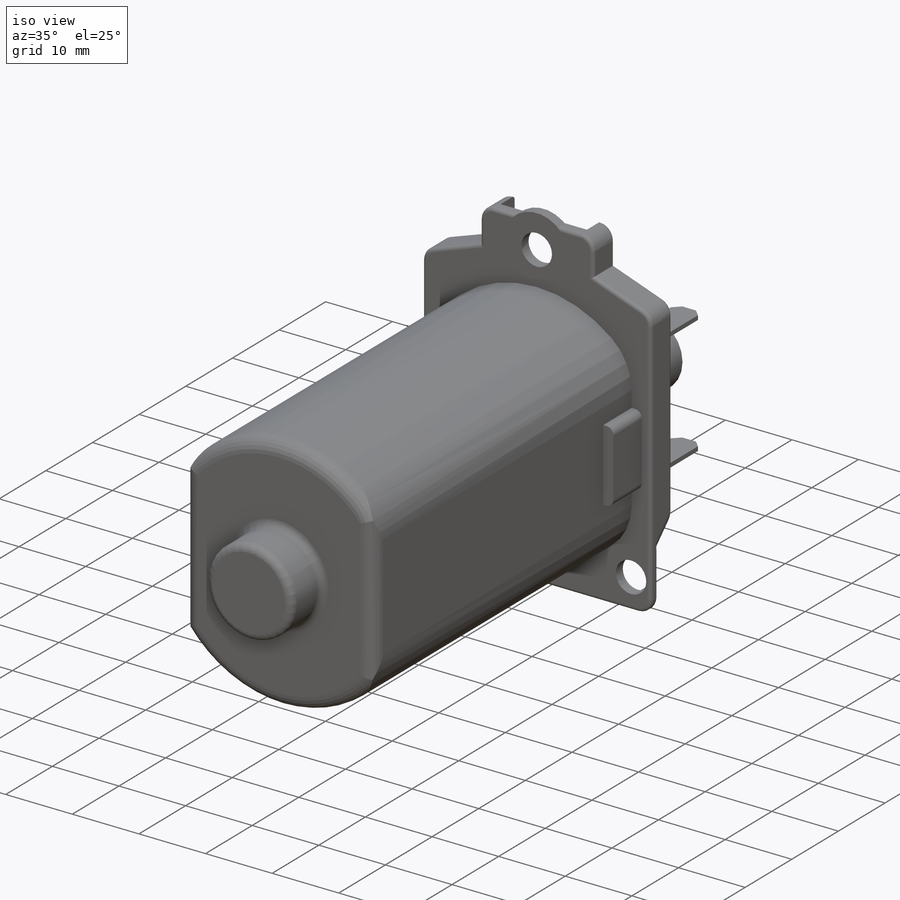
[diagram: iso view]
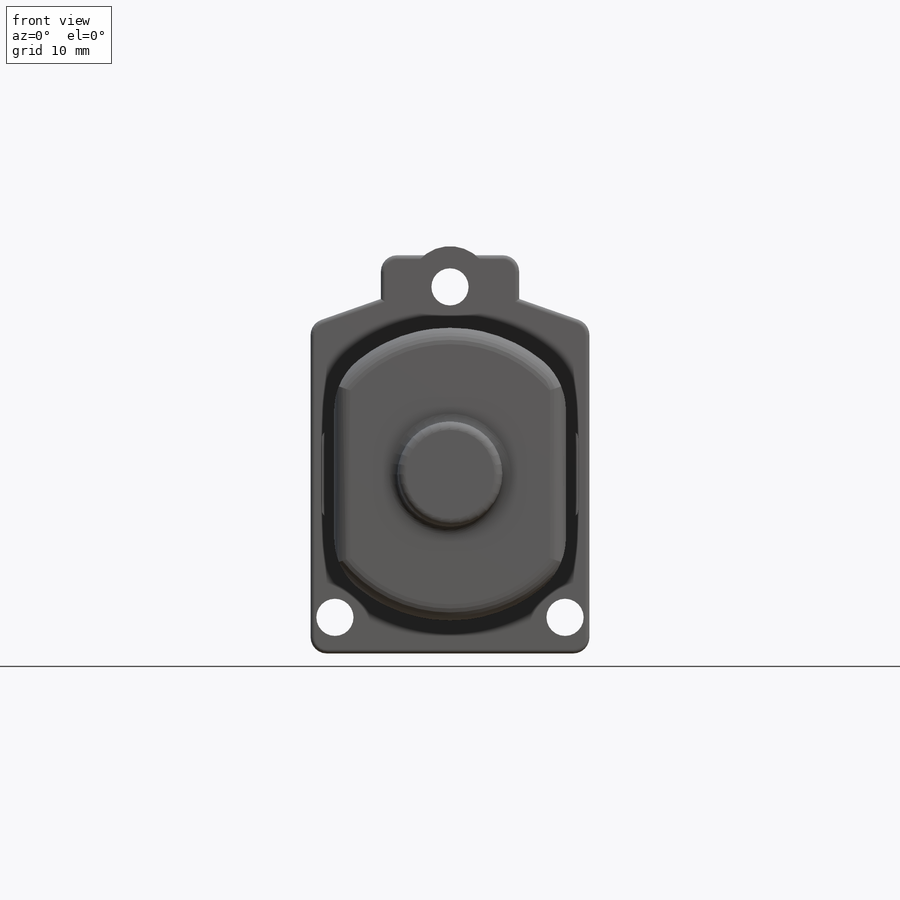
[diagram: front view]
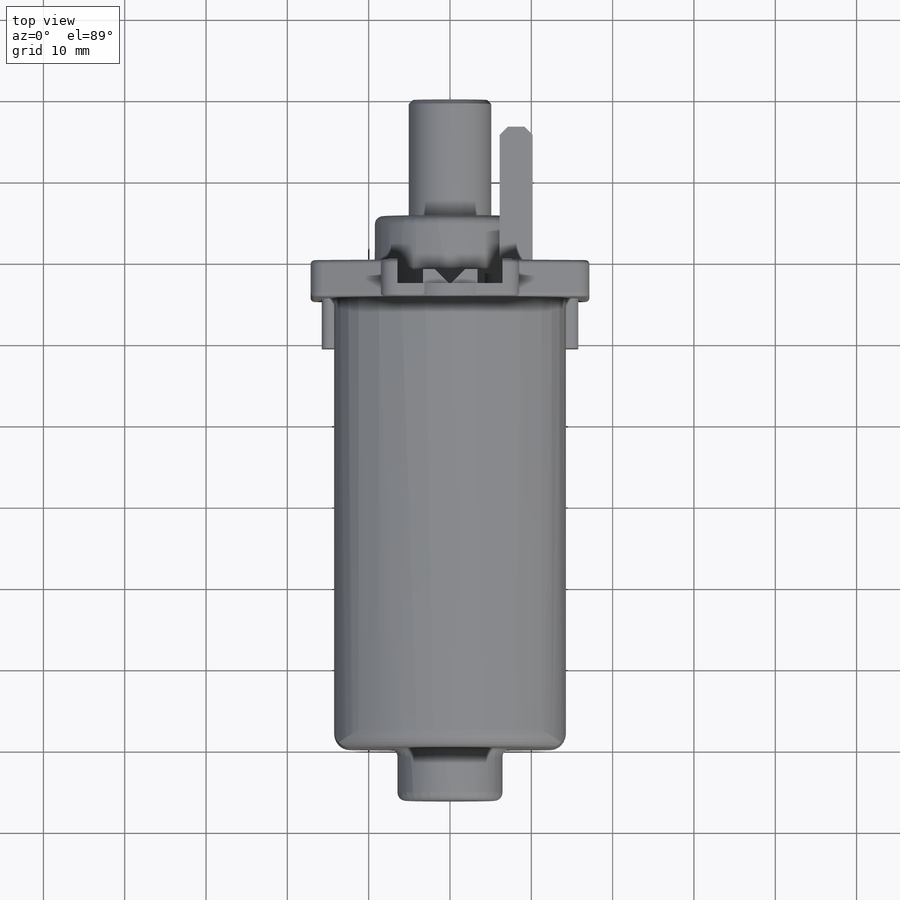
[diagram: top view]
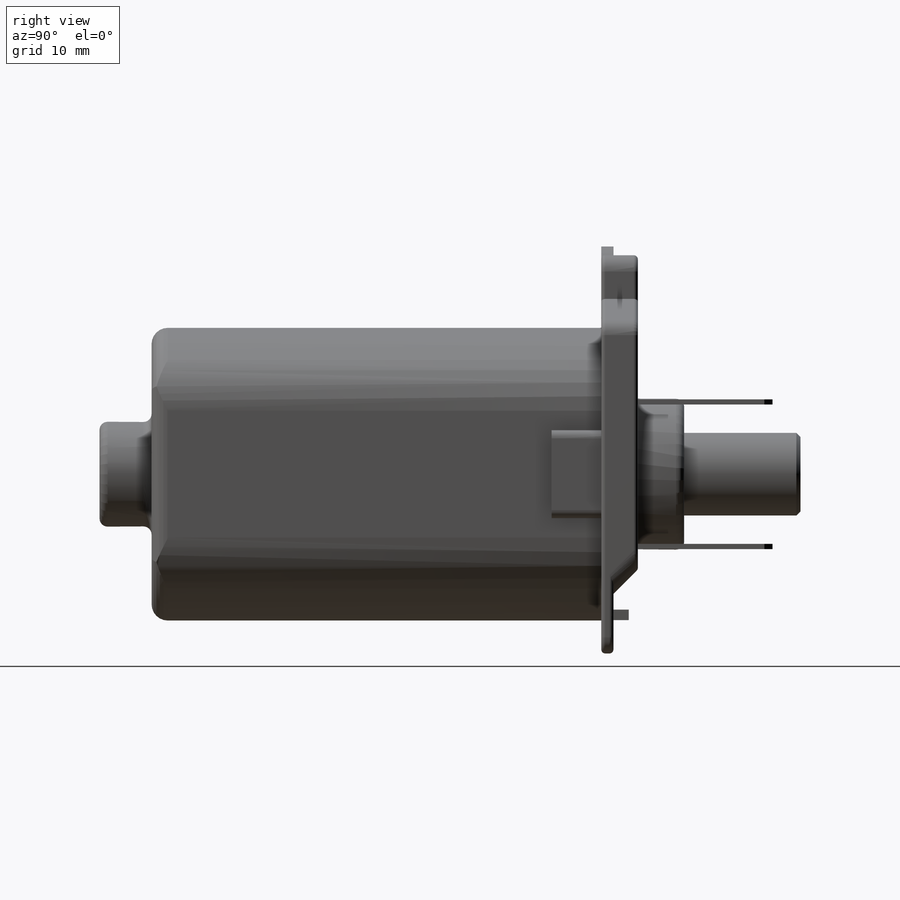
[diagram: right view]
SOLIDWORKS PART (.sldprt)
format: sldprt  version: not decoded by parser v0  size: 864,256 bytes
history: native  units: mm
features: sketch x21, extrude x7, cut_extrude x7, fillet x6, plane x2, revolve x2, chamfer x2, mirror x2, pattern_circular x2, material x1, hole x1 (+13 scaffold rows collapsed)
feature tree (66):
  scaffold x13  (default folders/planes/origin — collapsed)
  material  "Material <not specified>"
  plane  "Plane1"
  sketch  "Sketch1"  dims[D1=~26.926903mm D2=34.29mm D3=~48.976493mm]
  extrude  "Boss-Extrude1"  Depth=4.5mm
  sketch  "Sketch2"
  cut_extrude  "Cut-Extrude1"  Depth=4.5mm
  sketch  "Sketch3"
  cut_extrude  "Cut-Extrude2"  Depth=45mm
  sketch  "Sketch4"
  cut_extrude  "Cut-Extrude3"  Depth=4.5mm
  sketch  "Sketch5"
  extrude  "Boss-Extrude2"  Depth=55.3mm
  sketch  "Sketch6"
  revolve  "Revolve1"  Angle=360deg
  plane  "Plane2"
  sketch  "Sketch7"  dims[D1=9.271mm D2=5.08mm D3=5.7mm D4=20.0mm]
  revolve  "Revolve2"  Angle=360deg
  fillet  "Fillet1"  Radius=2mm
  fillet  "Fillet2"  Radius=8mm
  chamfer  "Chamfer1"  Distance=0.5mm Angle=45deg
  fillet  "Fillet3"  Radius=0.5mm
  fillet  "Fillet4"  Radius=1mm
  sketch  "Sketch8"  dims[D4=1.0mm D5=3.0mm D6=3.0mm D1=0.0mm D2=0.0mm D3=1.524mm]
  cut_extrude  "Cut-Extrude4"  [1 undecoded]
  hole  "Hole1"  Diameter=4.572mm Depth=100mm
  sketch  "Sketch10"  dims[c1.D1=43.688mm c1.D2=40.64mm c1.D3=~32.064419mm c2.D1=28.3mm c2.D3=4.445mm]
  sketch  "Sketch9"  dims[Diameter=4.572mm Depth=100.0mm]
  sketch  "Sketch11"  dims[c1.D1=~8.019944mm c1.D2=~3.367153mm c2.D1=3.048mm c2.D2=10.795mm]
  extrude  "Boss-Extrude3"  Depth=6.096mm
  fillet  "Fillet5"  Radius=1mm
  mirror  "Mirror1"
  sketch  "Sketch12"  dims[D1=5.08mm]
  cut_extrude  "Cut-Extrude5"  Depth=8.89mm
  sketch  "Sketch14"  dims[c1.D1=3.556mm c1.D2=4.064mm c1.D3=8.89mm c1.D4=8.128mm c1.D5=~1.769227mm c1.D6=4.064mm c2.D5=~1.152086mm c2.D6=4.064mm c3.D5=4.064mm c3.D6=0.635mm]
  extrude  "Boss-Extrude4"  Depth=1.524mm
  sketch  "Sketch15"  dims[D1=0.0mm D2=0.0mm]
  extrude  "Boss-Extrude5"  Depth=19.558mm
  chamfer  "Chamfer2"  Distance=1mm Angle=45deg
  fillet  "Fillet6"  Radius=2mm
  sketch  "Sketch16"  dims[D1=10.0mm]
  extrude  "Boss-Extrude6"  [1 undecoded]
  sketch  "Sketch17"  dims[c1.D1=13.4mm c1.D2=17.3mm c1.D3=~2.17578mm c1.D4=5.0112mm c2.D3=6.7mm c2.D4=1.3mm c2.D5=~5.301024mm c2.D6=~1.481543mm]
  extrude  "Boss-Extrude7"  Depth=1.88mm
  sketch  "Sketch18"  dims[c1.D2=~3.067324mm c2.D2=45.0deg c2.D1=0.0mm]
  cut_extrude  "Cut-Extrude6"  [1 undecoded]
  sketch  "Sketch19"  dims[c1.D1=1.88mm c2.D1=45.0deg c2.D2=0.0mm]
  cut_extrude  "Cut-Extrude7"  [1 undecoded]
  pattern_circular  "CirPattern1"  Count=2 Angle=360deg
  sketch  "Sketch20"  dims[D1=~1.173882mm]
  sketch  "0_0_Point"  dims[Diameter=2.0mm Width=0.0 Depth=0.0 StubLength=2.0mm]
  sketch  "0_1_Point"
  mirror  "0_1"
  pattern_circular  "Axis2"  Diameter=2mm Width=0 Depth=0 StubLength=2mm  [2 undecoded]
decode coverage: 38 of 50 modeling features carry decoded parameters
note: ~ marks probable driven/reference dimensions
note: 6 parameter values undecoded
summary: no parameter record found for 4 features
note: suppression state not decoded; provenance and decode notes live in map.json
